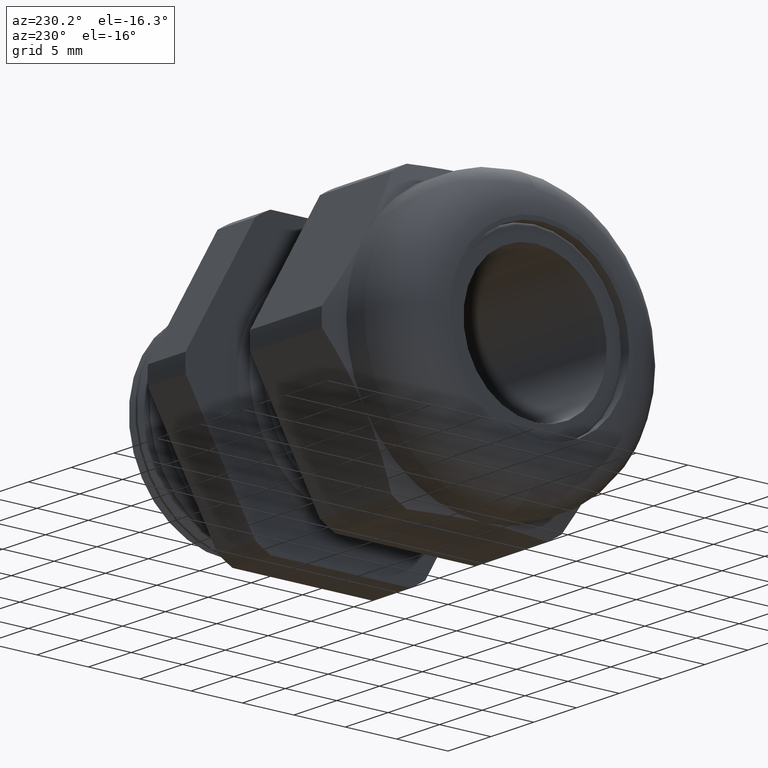
[diagram: clean part render]
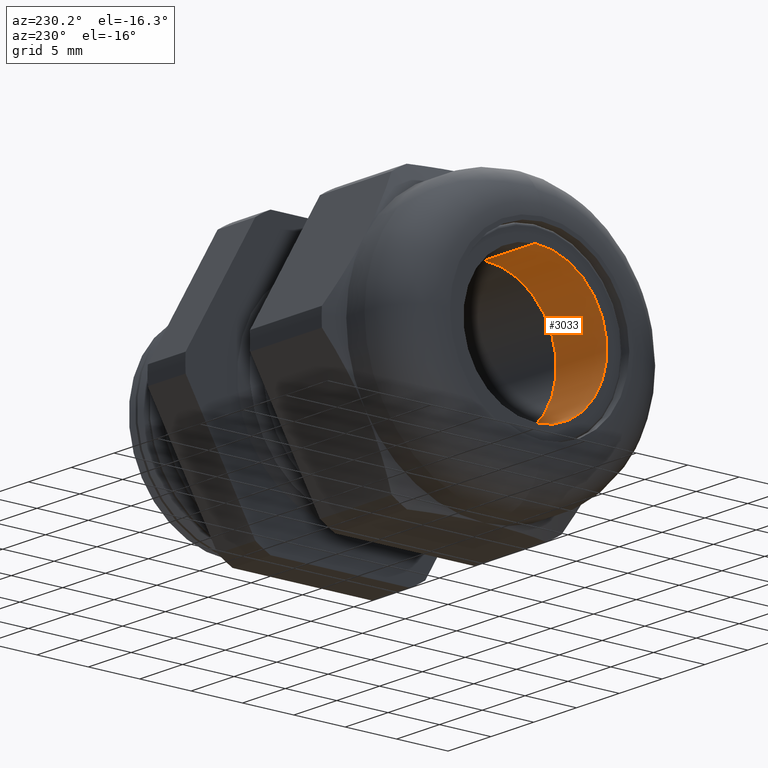
[diagram: same view with one face highlighted and labeled with its STEP entity id]
A machine part, auxiliary view. The second image highlights one B-rep face of the part: STEP entity #3033.
In plain terms, the highlighted cylindrical surface (partial cylindrical patch) has radius 6.985 mm, axis along (1, 0, 0).
Its self-contained STEP definition (entity closure, byte-faithful):
#2505 = DIRECTION ( 'NONE',  ( 1.000000000000000000, 0.0000000000000000000, 0.0000000000000000000 ) ) ;
#2506 = CARTESIAN_POINT ( 'NONE',  ( 0.3423310023310022200, 0.0000000000000000000, 0.0000000000000000000 ) ) ;
#2507 = AXIS2_PLACEMENT_3D ( 'NONE', #2506, #2505, #2570 ) ;
#2508 = CYLINDRICAL_SURFACE ( 'NONE', #2507, 0.2750000000000000200 ) ;
#2509 = CIRCLE ( 'NONE', #2569, 0.2750000000000000200 ) ;
#2510 = FACE_OUTER_BOUND ( 'NONE', #3035, .T. ) ;
#2511 = DIRECTION ( 'NONE',  ( 1.000000000000000000, 0.0000000000000000000, 0.0000000000000000000 ) ) ;
#2512 = VECTOR ( 'NONE', #2511, 39.37007874015748100 ) ;
#2513 = CARTESIAN_POINT ( 'NONE',  ( 0.3423310023310022200, 3.367778697655221300E-017, 0.2750000000000000200 ) ) ;
#2514 = LINE ( 'NONE', #2513, #2512 ) ;
#2515 = CARTESIAN_POINT ( 'NONE',  ( -0.8375000000000000200, 3.367778697655221300E-017, 0.2750000000000000200 ) ) ;
#2564 = CARTESIAN_POINT ( 'NONE',  ( -1.070000000000000300, 0.0000000000000000000, -0.2750000000000000200 ) ) ;
#2565 = CARTESIAN_POINT ( 'NONE',  ( -1.070000000000000300, 3.367778697655221300E-017, 0.2750000000000000200 ) ) ;
#2566 = DIRECTION ( 'NONE',  ( 0.0000000000000000000, 0.0000000000000000000, -1.000000000000000000 ) ) ;
#2567 = DIRECTION ( 'NONE',  ( 1.000000000000000000, 0.0000000000000000000, 0.0000000000000000000 ) ) ;
#2568 = CARTESIAN_POINT ( 'NONE',  ( -1.070000000000000300, 0.0000000000000000000, 0.0000000000000000000 ) ) ;
#2569 = AXIS2_PLACEMENT_3D ( 'NONE', #2568, #2567, #2566 ) ;
#2570 = DIRECTION ( 'NONE',  ( 0.0000000000000000000, 0.0000000000000000000, -1.000000000000000000 ) ) ;
#2638 = DIRECTION ( 'NONE',  ( 1.000000000000000000, 0.0000000000000000000, 0.0000000000000000000 ) ) ;
#2639 = VECTOR ( 'NONE', #2638, 39.37007874015748100 ) ;
#2640 = CARTESIAN_POINT ( 'NONE',  ( 0.3423310023310022200, 0.0000000000000000000, -0.2750000000000000200 ) ) ;
#2641 = LINE ( 'NONE', #2640, #2639 ) ;
#2694 = DIRECTION ( 'NONE',  ( 0.0000000000000000000, 0.0000000000000000000, -1.000000000000000000 ) ) ;
#2695 = DIRECTION ( 'NONE',  ( 1.000000000000000000, 0.0000000000000000000, 0.0000000000000000000 ) ) ;
#2696 = CARTESIAN_POINT ( 'NONE',  ( -0.8375000000000000200, 0.0000000000000000000, 0.0000000000000000000 ) ) ;
#2697 = AXIS2_PLACEMENT_3D ( 'NONE', #2696, #2695, #2694 ) ;
#2698 = CIRCLE ( 'NONE', #2697, 0.2750000000000000200 ) ;
#2699 = CARTESIAN_POINT ( 'NONE',  ( -0.8375000000000000200, 0.0000000000000000000, -0.2750000000000000200 ) ) ;
#2946 = VERTEX_POINT ( 'NONE', #2515 ) ;
#3030 = EDGE_CURVE ( 'NONE', #3037, #2946, #2514, .T. ) ;
#3032 = ORIENTED_EDGE ( 'NONE', *, *, #3030, .T. ) ;
#3033 = ADVANCED_FACE ( 'NONE', ( #2510 ), #2508, .F. ) ;
#3034 = ORIENTED_EDGE ( 'NONE', *, *, #3036, .F. ) ;
#3035 = EDGE_LOOP ( 'NONE', ( #3034, #3032, #3122, #3120 ) ) ;
#3036 = EDGE_CURVE ( 'NONE', #3037, #3038, #2509, .T. ) ;
#3037 = VERTEX_POINT ( 'NONE', #2565 ) ;
#3038 = VERTEX_POINT ( 'NONE', #2564 ) ;
#3117 = EDGE_CURVE ( 'NONE', #3038, #3118, #2641, .T. ) ;
#3118 = VERTEX_POINT ( 'NONE', #2699 ) ;
#3119 = EDGE_CURVE ( 'NONE', #2946, #3118, #2698, .T. ) ;
#3120 = ORIENTED_EDGE ( 'NONE', *, *, #3117, .F. ) ;
#3122 = ORIENTED_EDGE ( 'NONE', *, *, #3119, .T. ) ;